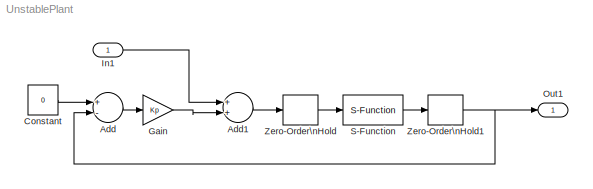
MODEL UnstablePlant
KIND model
BLOCK [Sum] Add
  InputSameDT = off
  Inputs = +-
  OutDataTypeStr = Inherit: Inherit via internal rule
  Ports = [2, 1]
  SID = 8
  SaturateOnIntegerOverflow = off
BLOCK [Sum] Add1
  InputSameDT = off
  OutDataTypeStr = Inherit: Inherit via internal rule
  Ports = [2, 1]
  SID = 9
  SaturateOnIntegerOverflow = off
BLOCK [Constant] Constant
  SID = 6
  Value = 0
BLOCK [Gain] Gain
  Gain = Kp
  OutDataTypeStr = Inherit: Inherit via internal rule
  ParamDataTypeStr = Inherit: Inherit via internal rule
  SID = 10
  SaturateOnIntegerOverflow = off
BLOCK [Inport] In1
  IconDisplay = Port number
  SID = 1
BLOCK [Outport] Out1
  IconDisplay = Port number
  SID = 5
BLOCK [S-Function] S-Function
  EnableBusSupport = off
  FunctionName = UnstableBlackBox_10_sf
  Ports = [1, 1]
  SFcnIsStateOwnerBlock = on
  SFcnStateName = DWORK0
  SFunctionDeploymentMode = off
  SID = 2
BLOCK [ZeroOrderHold] Zero-Order\nHold
  SID = 3
  SampleTime = Ts
BLOCK [ZeroOrderHold] Zero-Order\nHold1
  SID = 4
  SampleTime = Ts
LINE Add1:1 -> Zero-Order\nHold:1
LINE Add:1 -> Gain:1
LINE Constant:1 -> Add:1
LINE Gain:1 -> Add1:2
LINE In1:1 -> Add1:1
LINE S-Function:1 -> Zero-Order\nHold1:1
NET Zero-Order\nHold1:1 -> Add:2, Out1:1
LINE Zero-Order\nHold:1 -> S-Function:1
note: NET lines group one-source signal fan-out (src -> all destinations, sorted); 1:1 wires keep LINE
